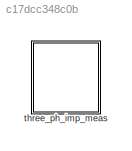
MODEL slx_c17dcc348c0b
KIND model
CONFIG AbsTol = auto
CONFIG EnableMultiTasking = off
CONFIG FixedStep = tStep
CONFIG MaxStep = auto
CONFIG MinStep = auto
CONFIG RelTol = 1e-3
CONFIG SampleTimeConstraint = Unconstrained
CONFIG SolverName = FixedStepAuto
CONFIG StartTime = 0.0
CONFIG StopTime = tStop
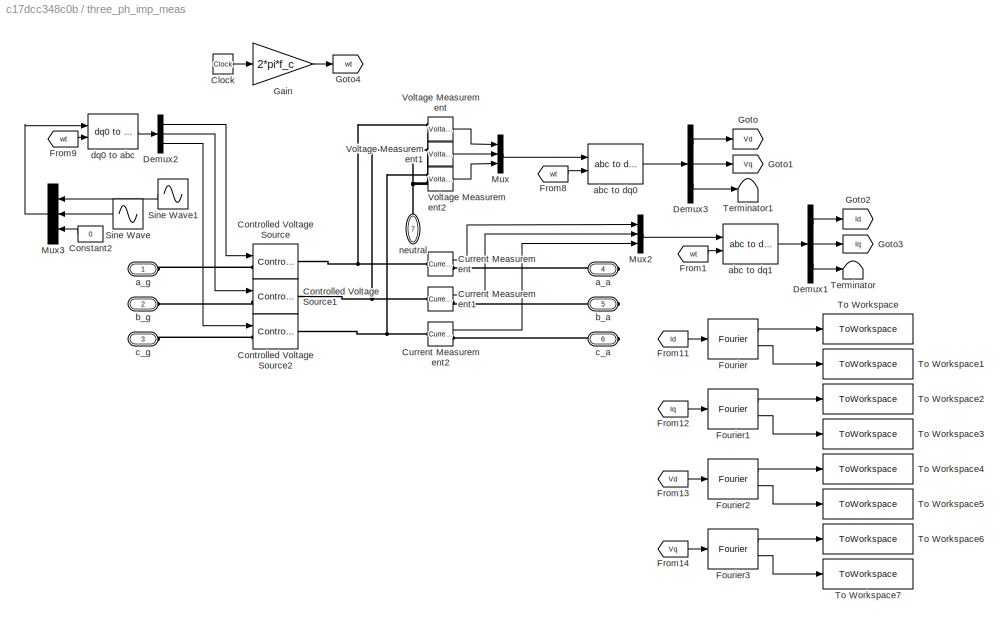
BLOCK [SubSystem] three_ph_imp_meas
  Ports = [0, 0, 0, 0, 0, 4, 3]
  RequestExecContextInheritance = off
BLOCK [Clock] three_ph_imp_meas/Clock
BLOCK [Constant] three_ph_imp_meas/Constant2
  NameLocation = top
  Value = 0
BLOCK [Reference] three_ph_imp_meas/Controlled Voltage Source  REF=powerlib/Electrical
Sources/Controlled Voltage Source
  Ports = [1, 0, 0, 0, 0, 1, 1]
  SourceBlock = powerlib/Electrical\nSources/Controlled Voltage Source
  SourceProductBaseCode = PS
  SourceType = Controlled Voltage Source
BLOCK [Reference] three_ph_imp_meas/Controlled Voltage Source1  REF=powerlib/Electrical
Sources/Controlled Voltage Source
  Ports = [1, 0, 0, 0, 0, 1, 1]
  SourceBlock = powerlib/Electrical\nSources/Controlled Voltage Source
  SourceProductBaseCode = PS
  SourceType = Controlled Voltage Source
BLOCK [Reference] three_ph_imp_meas/Controlled Voltage Source2  REF=powerlib/Electrical
Sources/Controlled Voltage Source
  Ports = [1, 0, 0, 0, 0, 1, 1]
  SourceBlock = powerlib/Electrical\nSources/Controlled Voltage Source
  SourceProductBaseCode = PS
  SourceType = Controlled Voltage Source
BLOCK [Reference] three_ph_imp_meas/Current Measurement  REF=powerlib/Measurements/Current Measurement
  Ports = [0, 1, 0, 0, 0, 1, 1]
  SourceBlock = powerlib/Measurements/Current Measurement
  SourceProductBaseCode = PS
  SourceType = Current Measurement
  UserDataPersistent = on
BLOCK [Reference] three_ph_imp_meas/Current Measurement1  REF=powerlib/Measurements/Current Measurement
  Ports = [0, 1, 0, 0, 0, 1, 1]
  SourceBlock = powerlib/Measurements/Current Measurement
  SourceProductBaseCode = PS
  SourceType = Current Measurement
  UserDataPersistent = on
BLOCK [Reference] three_ph_imp_meas/Current Measurement2  REF=powerlib/Measurements/Current Measurement
  Ports = [0, 1, 0, 0, 0, 1, 1]
  SourceBlock = powerlib/Measurements/Current Measurement
  SourceProductBaseCode = PS
  SourceType = Current Measurement
  UserDataPersistent = on
BLOCK [Demux] three_ph_imp_meas/Demux1
  Outputs = 3
  Ports = [1, 3]
BLOCK [Demux] three_ph_imp_meas/Demux2
  Outputs = 3
  Ports = [1, 3]
BLOCK [Demux] three_ph_imp_meas/Demux3
  Outputs = 3
  Ports = [1, 3]
BLOCK [Reference] three_ph_imp_meas/Fourier  REF=powerlib_meascontrol/Measurements/Fourier
  Ports = [1, 2]
  SourceBlock = powerlib_meascontrol/Measurements/Fourier
  SourceProductBaseCode = PS
  SourceType = Fourier
BLOCK [Reference] three_ph_imp_meas/Fourier1  REF=powerlib_meascontrol/Measurements/Fourier
  Ports = [1, 2]
  SourceBlock = powerlib_meascontrol/Measurements/Fourier
  SourceProductBaseCode = PS
  SourceType = Fourier
BLOCK [Reference] three_ph_imp_meas/Fourier2  REF=powerlib_meascontrol/Measurements/Fourier
  Ports = [1, 2]
  SourceBlock = powerlib_meascontrol/Measurements/Fourier
  SourceProductBaseCode = PS
  SourceType = Fourier
BLOCK [Reference] three_ph_imp_meas/Fourier3  REF=powerlib_meascontrol/Measurements/Fourier
  Ports = [1, 2]
  SourceBlock = powerlib_meascontrol/Measurements/Fourier
  SourceProductBaseCode = PS
  SourceType = Fourier
BLOCK [From] three_ph_imp_meas/From1
  GotoTag = wt
BLOCK [From] three_ph_imp_meas/From11
  GotoTag = Id
BLOCK [From] three_ph_imp_meas/From12
  GotoTag = Iq
BLOCK [From] three_ph_imp_meas/From13
  GotoTag = Vd
BLOCK [From] three_ph_imp_meas/From14
  GotoTag = Vq
BLOCK [From] three_ph_imp_meas/From8
  GotoTag = wt
BLOCK [From] three_ph_imp_meas/From9
  GotoTag = wt
BLOCK [Gain] three_ph_imp_meas/Gain
  Gain = 2*pi*f_c
BLOCK [Goto] three_ph_imp_meas/Goto
  GotoTag = Vd
BLOCK [Goto] three_ph_imp_meas/Goto1
  GotoTag = Vq
BLOCK [Goto] three_ph_imp_meas/Goto2
  GotoTag = Id
BLOCK [Goto] three_ph_imp_meas/Goto3
  GotoTag = Iq
BLOCK [Goto] three_ph_imp_meas/Goto4
  GotoTag = wt
BLOCK [Mux] three_ph_imp_meas/Mux
  DisplayOption = bar
  Inputs = 3
  Ports = [3, 1]
BLOCK [Mux] three_ph_imp_meas/Mux2
  DisplayOption = bar
  Inputs = 3
  Ports = [3, 1]
BLOCK [Mux] three_ph_imp_meas/Mux3
  DisplayOption = bar
  Inputs = 3
  NameLocation = top
  Ports = [3, 1]
BLOCK [Sin] three_ph_imp_meas/Sine Wave
  Amplitude = amp(1,2)
  Frequency = 2*pi*freq(1,2)
  NameLocation = top
  Ports = [0, 1]
  SampleTime = 0
BLOCK [Sin] three_ph_imp_meas/Sine Wave1
  Amplitude = amp(1,1)
  Frequency = 2*pi*freq(1,1)
  NameLocation = top
  Ports = [0, 1]
  SampleTime = 0
BLOCK [Terminator] three_ph_imp_meas/Terminator
BLOCK [Terminator] three_ph_imp_meas/Terminator1
BLOCK [ToWorkspace] three_ph_imp_meas/To Workspace
  FixptAsFi = on
  MaxDataPoints = inf
  Ports = [1]
  SampleTime = -1
  VariableName = I_d_mag
BLOCK [ToWorkspace] three_ph_imp_meas/To Workspace1
  FixptAsFi = on
  MaxDataPoints = inf
  Ports = [1]
  SampleTime = -1
  VariableName = I_d_phase
BLOCK [ToWorkspace] three_ph_imp_meas/To Workspace2
  FixptAsFi = on
  MaxDataPoints = inf
  Ports = [1]
  SampleTime = -1
  VariableName = I_q_mag
BLOCK [ToWorkspace] three_ph_imp_meas/To Workspace3
  FixptAsFi = on
  MaxDataPoints = inf
  Ports = [1]
  SampleTime = -1
  VariableName = I_q_phase
BLOCK [ToWorkspace] three_ph_imp_meas/To Workspace4
  FixptAsFi = on
  MaxDataPoints = inf
  Ports = [1]
  SampleTime = -1
  VariableName = V_d_mag
BLOCK [ToWorkspace] three_ph_imp_meas/To Workspace5
  FixptAsFi = on
  MaxDataPoints = inf
  Ports = [1]
  SampleTime = -1
  VariableName = V_d_phase
BLOCK [ToWorkspace] three_ph_imp_meas/To Workspace6
  FixptAsFi = on
  MaxDataPoints = inf
  Ports = [1]
  SampleTime = -1
  VariableName = V_q_mag
BLOCK [ToWorkspace] three_ph_imp_meas/To Workspace7
  FixptAsFi = on
  MaxDataPoints = inf
  Ports = [1]
  SampleTime = -1
  VariableName = V_q_phase
BLOCK [Reference] three_ph_imp_meas/Voltage Measurement  REF=powerlib/Measurements/Voltage Measurement
  Ports = [0, 1, 0, 0, 0, 2]
  SourceBlock = powerlib/Measurements/Voltage Measurement
  SourceProductBaseCode = PS
  SourceType = Voltage Measurement
  UserDataPersistent = on
BLOCK [Reference] three_ph_imp_meas/Voltage Measurement1  REF=powerlib/Measurements/Voltage Measurement
  Ports = [0, 1, 0, 0, 0, 2]
  SourceBlock = powerlib/Measurements/Voltage Measurement
  SourceProductBaseCode = PS
  SourceType = Voltage Measurement
  UserDataPersistent = on
BLOCK [Reference] three_ph_imp_meas/Voltage Measurement2  REF=powerlib/Measurements/Voltage Measurement
  Ports = [0, 1, 0, 0, 0, 2]
  SourceBlock = powerlib/Measurements/Voltage Measurement
  SourceProductBaseCode = PS
  SourceType = Voltage Measurement
  UserDataPersistent = on
BLOCK [PMIOPort] three_ph_imp_meas/a_a
  Port = 4
  Side = Right
BLOCK [PMIOPort] three_ph_imp_meas/a_g
  Side = Left
BLOCK [Reference] three_ph_imp_meas/abc to dq0  REF=powerlib_meascontrol/Transformations/abc to dq0
  Ports = [2, 1]
  SourceBlock = powerlib_meascontrol/Transformations/abc to dq0
  SourceProductBaseCode = PS
  SourceType = abc to dq0 Transformation
BLOCK [Reference] three_ph_imp_meas/abc to dq1  REF=powerlib_meascontrol/Transformations/abc to dq0
  Ports = [2, 1]
  SourceBlock = powerlib_meascontrol/Transformations/abc to dq0
  SourceProductBaseCode = PS
  SourceType = abc to dq0 Transformation
BLOCK [PMIOPort] three_ph_imp_meas/b_a
  Port = 5
  Side = Right
BLOCK [PMIOPort] three_ph_imp_meas/b_g
  Port = 2
  Side = Left
BLOCK [PMIOPort] three_ph_imp_meas/c_a
  Port = 6
  Side = Right
BLOCK [PMIOPort] three_ph_imp_meas/c_g
  Port = 3
  Side = Left
BLOCK [Reference] three_ph_imp_meas/dq0 to abc  REF=powerlib_meascontrol/Transformations/dq0 to abc
  Ports = [2, 1]
  SourceBlock = powerlib_meascontrol/Transformations/dq0 to abc
  SourceProductBaseCode = PS
  SourceType = dq0 to abc Transformation
BLOCK [PMIOPort] three_ph_imp_meas/neutral
  NameLocation = right
  Port = 7
  Side = Left
LINE three_ph_imp_meas/Clock:1 -> three_ph_imp_meas/Gain:1
LINE three_ph_imp_meas/Constant2:1 -> three_ph_imp_meas/Mux3:3
LINE three_ph_imp_meas/Current Measurement1:1 -> three_ph_imp_meas/Mux2:2
LINE three_ph_imp_meas/Current Measurement2:1 -> three_ph_imp_meas/Mux2:3
LINE three_ph_imp_meas/Current Measurement:1 -> three_ph_imp_meas/Mux2:1
LINE three_ph_imp_meas/Demux1:1 -> three_ph_imp_meas/Goto2:1
LINE three_ph_imp_meas/Demux1:2 -> three_ph_imp_meas/Goto3:1
LINE three_ph_imp_meas/Demux1:3 -> three_ph_imp_meas/Terminator:1
LINE three_ph_imp_meas/Demux2:1 -> three_ph_imp_meas/Controlled Voltage Source:1
LINE three_ph_imp_meas/Demux2:2 -> three_ph_imp_meas/Controlled Voltage Source1:1
LINE three_ph_imp_meas/Demux2:3 -> three_ph_imp_meas/Controlled Voltage Source2:1
LINE three_ph_imp_meas/Demux3:1 -> three_ph_imp_meas/Goto:1
LINE three_ph_imp_meas/Demux3:2 -> three_ph_imp_meas/Goto1:1
LINE three_ph_imp_meas/Demux3:3 -> three_ph_imp_meas/Terminator1:1
LINE three_ph_imp_meas/Fourier1:1 -> three_ph_imp_meas/To Workspace2:1
LINE three_ph_imp_meas/Fourier1:2 -> three_ph_imp_meas/To Workspace3:1
LINE three_ph_imp_meas/Fourier2:1 -> three_ph_imp_meas/To Workspace4:1
LINE three_ph_imp_meas/Fourier2:2 -> three_ph_imp_meas/To Workspace5:1
LINE three_ph_imp_meas/Fourier3:1 -> three_ph_imp_meas/To Workspace6:1
LINE three_ph_imp_meas/Fourier3:2 -> three_ph_imp_meas/To Workspace7:1
LINE three_ph_imp_meas/Fourier:1 -> three_ph_imp_meas/To Workspace:1
LINE three_ph_imp_meas/Fourier:2 -> three_ph_imp_meas/To Workspace1:1
LINE three_ph_imp_meas/From11:1 -> three_ph_imp_meas/Fourier:1
LINE three_ph_imp_meas/From12:1 -> three_ph_imp_meas/Fourier1:1
LINE three_ph_imp_meas/From13:1 -> three_ph_imp_meas/Fourier2:1
LINE three_ph_imp_meas/From14:1 -> three_ph_imp_meas/Fourier3:1
LINE three_ph_imp_meas/From1:1 -> three_ph_imp_meas/abc to dq1:2
LINE three_ph_imp_meas/From8:1 -> three_ph_imp_meas/abc to dq0:2
LINE three_ph_imp_meas/From9:1 -> three_ph_imp_meas/dq0 to abc:2
LINE three_ph_imp_meas/Gain:1 -> three_ph_imp_meas/Goto4:1
LINE three_ph_imp_meas/Mux2:1 -> three_ph_imp_meas/abc to dq1:1
LINE three_ph_imp_meas/Mux3:1 -> three_ph_imp_meas/dq0 to abc:1
LINE three_ph_imp_meas/Mux:1 -> three_ph_imp_meas/abc to dq0:1
LINE three_ph_imp_meas/Sine Wave1:1 -> three_ph_imp_meas/Mux3:1
LINE three_ph_imp_meas/Sine Wave:1 -> three_ph_imp_meas/Mux3:2
LINE three_ph_imp_meas/Voltage Measurement1:1 -> three_ph_imp_meas/Mux:2
LINE three_ph_imp_meas/Voltage Measurement2:1 -> three_ph_imp_meas/Mux:3
LINE three_ph_imp_meas/Voltage Measurement:1 -> three_ph_imp_meas/Mux:1
LINE three_ph_imp_meas/abc to dq0:1 -> three_ph_imp_meas/Demux3:1
LINE three_ph_imp_meas/abc to dq1:1 -> three_ph_imp_meas/Demux1:1
LINE three_ph_imp_meas/dq0 to abc:1 -> three_ph_imp_meas/Demux2:1
PLINE three_ph_imp_meas/Controlled Voltage Source1:LConn1 -- three_ph_imp_meas/b_g:RConn1
PNET net1: three_ph_imp_meas/Controlled Voltage Source1:RConn1 -- three_ph_imp_meas/Current Measurement1:LConn1 -- three_ph_imp_meas/Voltage Measurement1:LConn1
PLINE three_ph_imp_meas/Controlled Voltage Source2:LConn1 -- three_ph_imp_meas/c_g:RConn1
PNET net2: three_ph_imp_meas/Controlled Voltage Source2:RConn1 -- three_ph_imp_meas/Current Measurement2:LConn1 -- three_ph_imp_meas/Voltage Measurement2:LConn1
PLINE three_ph_imp_meas/Controlled Voltage Source:LConn1 -- three_ph_imp_meas/a_g:RConn1
PNET net3: three_ph_imp_meas/Controlled Voltage Source:RConn1 -- three_ph_imp_meas/Current Measurement:LConn1 -- three_ph_imp_meas/Voltage Measurement:LConn1
PLINE three_ph_imp_meas/Current Measurement1:RConn1 -- three_ph_imp_meas/b_a:RConn1
PLINE three_ph_imp_meas/Current Measurement2:RConn1 -- three_ph_imp_meas/c_a:RConn1
PLINE three_ph_imp_meas/Current Measurement:RConn1 -- three_ph_imp_meas/a_a:RConn1
PNET net4: three_ph_imp_meas/Voltage Measurement1:LConn2 -- three_ph_imp_meas/Voltage Measurement2:LConn2 -- three_ph_imp_meas/Voltage Measurement:LConn2 -- three_ph_imp_meas/neutral:RConn1
note: PNET lines group multi-terminal physical nets as a canonical sorted terminal list (undirected conserving connections); 2-terminal nets keep the pairwise PLINE form
